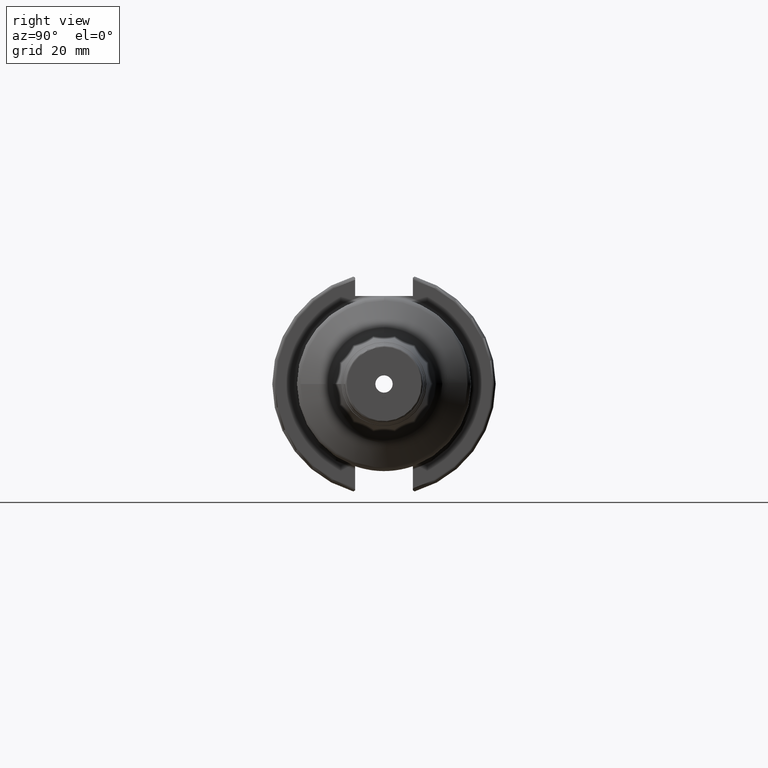
[diagram: clean part render]
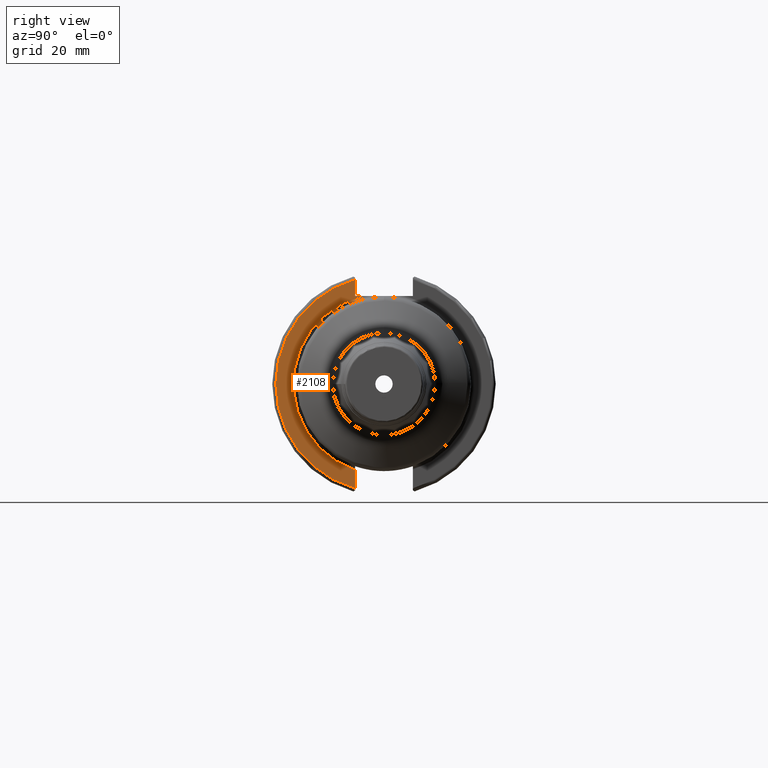
[diagram: same view with one face highlighted and labeled with its STEP entity id]
A machine part, right view. The second image highlights one B-rep face of the part: STEP entity #2108.
In plain terms, the highlighted planar face has unit normal (1, 0, 0).
Its self-contained STEP definition (entity closure, byte-faithful):
#134=PLANE('',#2307);
#177=LINE('',#3423,#272);
#178=LINE('',#3425,#273);
#179=LINE('',#3428,#274);
#272=VECTOR('',#2715,10.);
#273=VECTOR('',#2716,10.);
#274=VECTOR('',#2719,10.);
#402=FACE_OUTER_BOUND('',#511,.T.);
#511=EDGE_LOOP('',(#1534,#1535,#1536,#1537,#1538));
#680=CIRCLE('',#2303,25.75);
#684=CIRCLE('',#2308,30.75);
#849=VERTEX_POINT('',#3380);
#851=VERTEX_POINT('',#3392);
#856=VERTEX_POINT('',#3422);
#857=VERTEX_POINT('',#3424);
#858=VERTEX_POINT('',#3426);
#1112=EDGE_CURVE('',#849,#851,#680,.T.);
#1118=EDGE_CURVE('',#849,#856,#177,.T.);
#1119=EDGE_CURVE('',#856,#857,#178,.T.);
#1120=EDGE_CURVE('',#858,#857,#684,.T.);
#1121=EDGE_CURVE('',#858,#851,#179,.T.);
#1534=ORIENTED_EDGE('',*,*,#1112,.F.);
#1535=ORIENTED_EDGE('',*,*,#1118,.T.);
#1536=ORIENTED_EDGE('',*,*,#1119,.T.);
#1537=ORIENTED_EDGE('',*,*,#1120,.F.);
#1538=ORIENTED_EDGE('',*,*,#1121,.T.);
#2108=ADVANCED_FACE('',(#402),#134,.T.);
#2303=AXIS2_PLACEMENT_3D('',#3393,#2705,#2706);
#2307=AXIS2_PLACEMENT_3D('',#3421,#2713,#2714);
#2308=AXIS2_PLACEMENT_3D('',#3427,#2717,#2718);
#2705=DIRECTION('center_axis',(1.,0.,0.));
#2706=DIRECTION('ref_axis',(0.,6.12323399573677E-17,1.));
#2713=DIRECTION('center_axis',(1.,0.,0.));
#2714=DIRECTION('ref_axis',(0.,0.,-1.));
#2715=DIRECTION('',(0.,-1.,0.));
#2716=DIRECTION('',(0.,0.,1.));
#2717=DIRECTION('center_axis',(-1.,0.,0.));
#2718=DIRECTION('ref_axis',(0.,-1.,1.60812264967664E-16));
#2719=DIRECTION('',(0.,0.,1.));
#3380=CARTESIAN_POINT('',(19.05,-6.16948133962652,25.));
#3392=CARTESIAN_POINT('',(19.05,-8.19,-24.4128326910254));
#3393=CARTESIAN_POINT('Origin',(19.05,0.,0.));
#3421=CARTESIAN_POINT('Origin',(19.05,0.,0.));
#3422=CARTESIAN_POINT('',(19.05,-8.19,25.));
#3423=CARTESIAN_POINT('',(19.05,0.,25.));
#3424=CARTESIAN_POINT('',(19.05,-8.19,29.6392712461019));
#3425=CARTESIAN_POINT('',(19.05,-8.19,12.5));
#3426=CARTESIAN_POINT('',(19.05,-8.19,-29.6392712461019));
#3427=CARTESIAN_POINT('Origin',(19.05,0.,0.));
#3428=CARTESIAN_POINT('',(19.05,-8.19,-11.3));